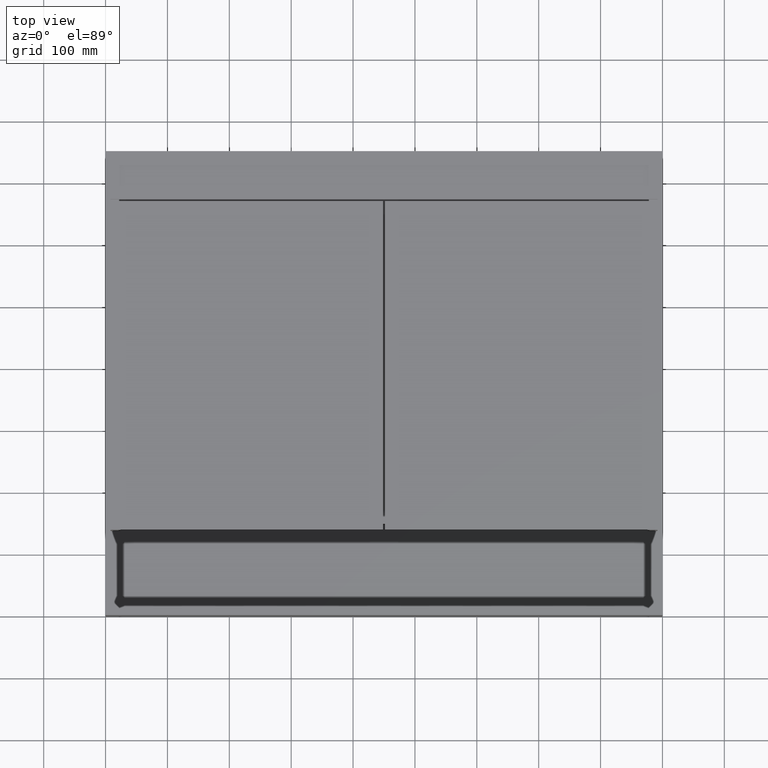
[diagram: clean part render]
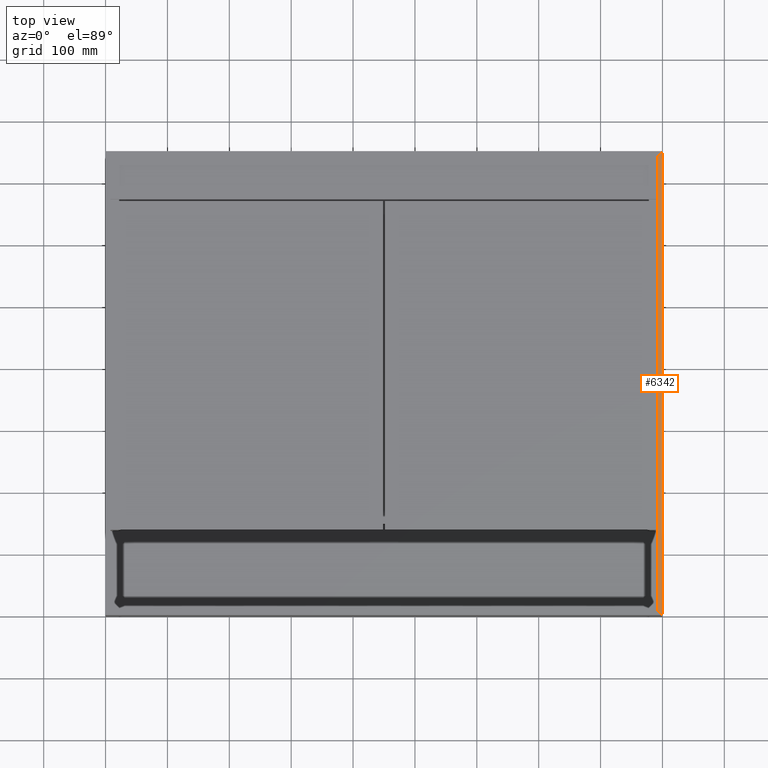
[diagram: same view with one face highlighted and labeled with its STEP entity id]
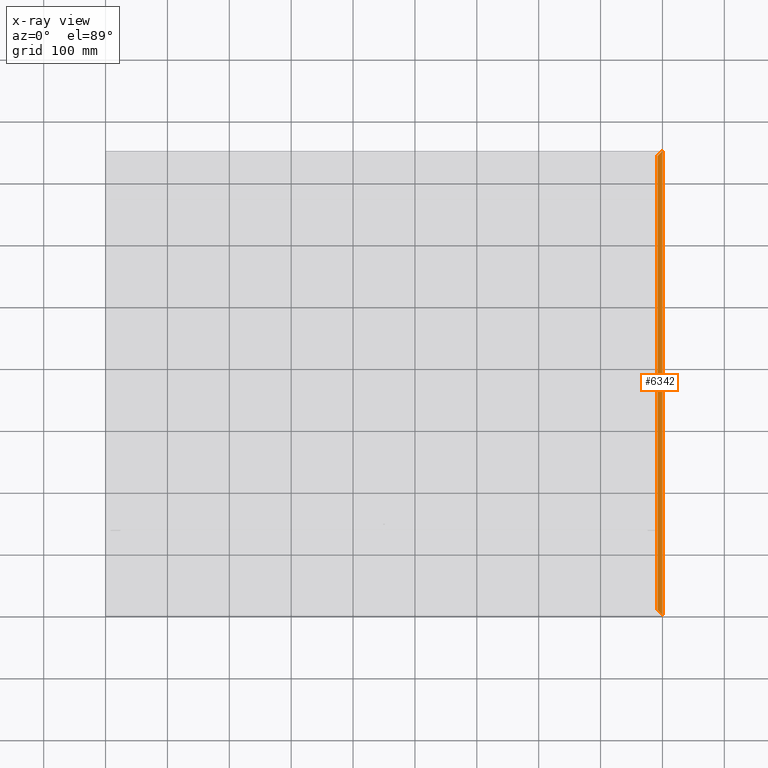
[diagram: x-ray of the same camera — body ghosted, the highlighted face saturated]
A machine part, top view. The second image highlights one B-rep face of the part: STEP entity #6342.
The next image is the same camera in x-ray: the body ghosted, the highlighted face saturated — about 0% of this face is hidden behind the body in this view.
In plain terms, the highlighted planar face has unit normal (-0, 0, -1).
Its self-contained STEP definition (entity closure, byte-faithful):
#524 = EDGE_CURVE ( 'NONE', #6169, #9405, #1303, .T. ) ;
#690 = ORIENTED_EDGE ( 'NONE', *, *, #3670, .T. ) ;
#1252 = DIRECTION ( 'NONE',  ( -1.000000000000000000, 2.710505431213761687E-20, 1.734723475976807480E-18 ) ) ;
#1284 = VECTOR ( 'NONE', #6807, 1000.000000000000000 ) ;
#1303 = LINE ( 'NONE', #4744, #10404 ) ;
#1707 = EDGE_LOOP ( 'NONE', ( #4053, #690, #3749, #7468 ) ) ;
#2089 = PLANE ( 'NONE',  #8867 ) ;
#2317 = LINE ( 'NONE', #5763, #4306 ) ;
#2516 = CARTESIAN_POINT ( 'NONE',  ( 892.0000000000000000, 7.999999999999785061, 0.0000000000000000000 ) ) ;
#2676 = DIRECTION ( 'NONE',  ( 0.7071067811865474617, -0.7071067811865475727, -4.336808689942017736E-19 ) ) ;
#2872 = CARTESIAN_POINT ( 'NONE',  ( 900.0000000000000000, 750.0000000000000000, -1.387778780781445676E-14 ) ) ;
#3361 = CARTESIAN_POINT ( 'NONE',  ( 900.0000000000000000, 750.0000000000000000, -1.387778780781445676E-14 ) ) ;
#3408 = VERTEX_POINT ( 'NONE', #2872 ) ;
#3565 = CARTESIAN_POINT ( 'NONE',  ( 892.0000000000000000, 742.0000000000000000, 0.0000000000000000000 ) ) ;
#3670 = EDGE_CURVE ( 'NONE', #9405, #10868, #6981, .T. ) ;
#3749 = ORIENTED_EDGE ( 'NONE', *, *, #10176, .F. ) ;
#4053 = ORIENTED_EDGE ( 'NONE', *, *, #524, .T. ) ;
#4306 = VECTOR ( 'NONE', #9214, 1000.000000000000000 ) ;
#4744 = CARTESIAN_POINT ( 'NONE',  ( 892.0000000000000000, 900.2131818450033052, -1.387778780781445676E-14 ) ) ;
#5531 = CARTESIAN_POINT ( 'NONE',  ( 892.0000000000000000, 900.2131818450033052, -1.387778780781445676E-14 ) ) ;
#5676 = EDGE_CURVE ( 'NONE', #3408, #6169, #11098, .T. ) ;
#5763 = CARTESIAN_POINT ( 'NONE',  ( 900.0000000000000000, 900.2131818450033052, 0.0000000000000000000 ) ) ;
#6169 = VERTEX_POINT ( 'NONE', #3565 ) ;
#6342 = ADVANCED_FACE ( 'NONE', ( #9835 ), #2089, .F. ) ;
#6807 = DIRECTION ( 'NONE',  ( -0.7071067811865474617, -0.7071067811865476838, 1.301042606982605321E-18 ) ) ;
#6981 = LINE ( 'NONE', #10416, #9353 ) ;
#7468 = ORIENTED_EDGE ( 'NONE', *, *, #5676, .T. ) ;
#8194 = DIRECTION ( 'NONE',  ( 2.710505431213760483E-20, -1.000000000000000000, 2.226637860094741535E-19 ) ) ;
#8584 = CARTESIAN_POINT ( 'NONE',  ( 900.0000000000000000, -1.665334536937734811E-13, 1.387778780781445676E-14 ) ) ;
#8867 = AXIS2_PLACEMENT_3D ( 'NONE', #5531, #8986, #1252 ) ;
#8986 = DIRECTION ( 'NONE',  ( -1.734723475976807480E-18, 2.226637860094742016E-19, -1.000000000000000000 ) ) ;
#9214 = DIRECTION ( 'NONE',  ( 2.710505431213760483E-20, -1.000000000000000000, 2.226637860094741535E-19 ) ) ;
#9353 = VECTOR ( 'NONE', #2676, 1000.000000000000000 ) ;
#9405 = VERTEX_POINT ( 'NONE', #2516 ) ;
#9835 = FACE_OUTER_BOUND ( 'NONE', #1707, .T. ) ;
#10176 = EDGE_CURVE ( 'NONE', #3408, #10868, #2317, .T. ) ;
#10404 = VECTOR ( 'NONE', #8194, 1000.000000000000000 ) ;
#10416 = CARTESIAN_POINT ( 'NONE',  ( 892.0000000000000000, 7.999999999999785061, 0.0000000000000000000 ) ) ;
#10868 = VERTEX_POINT ( 'NONE', #8584 ) ;
#11098 = LINE ( 'NONE', #3361, #1284 ) ;